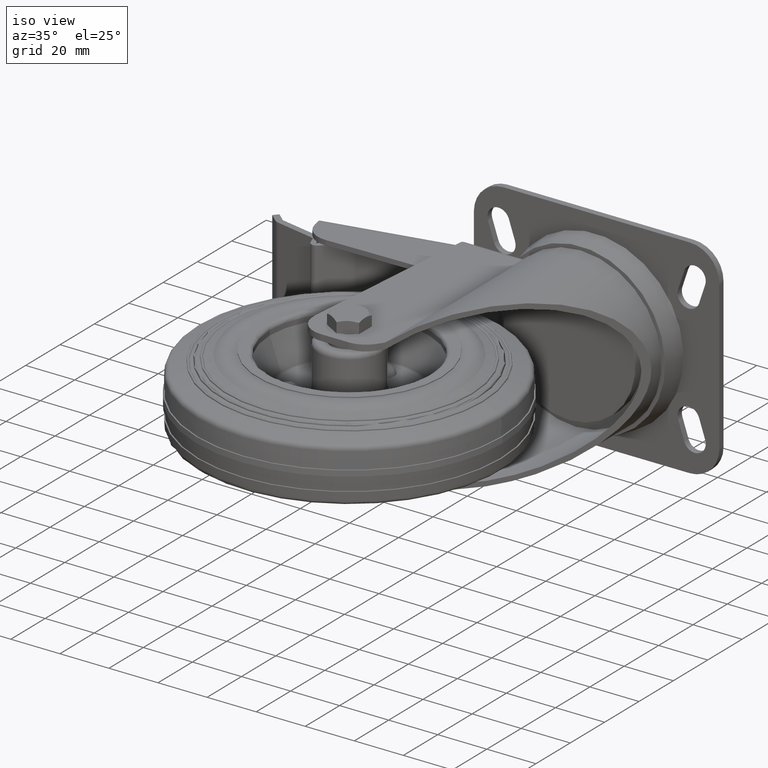
[diagram: clean part render]
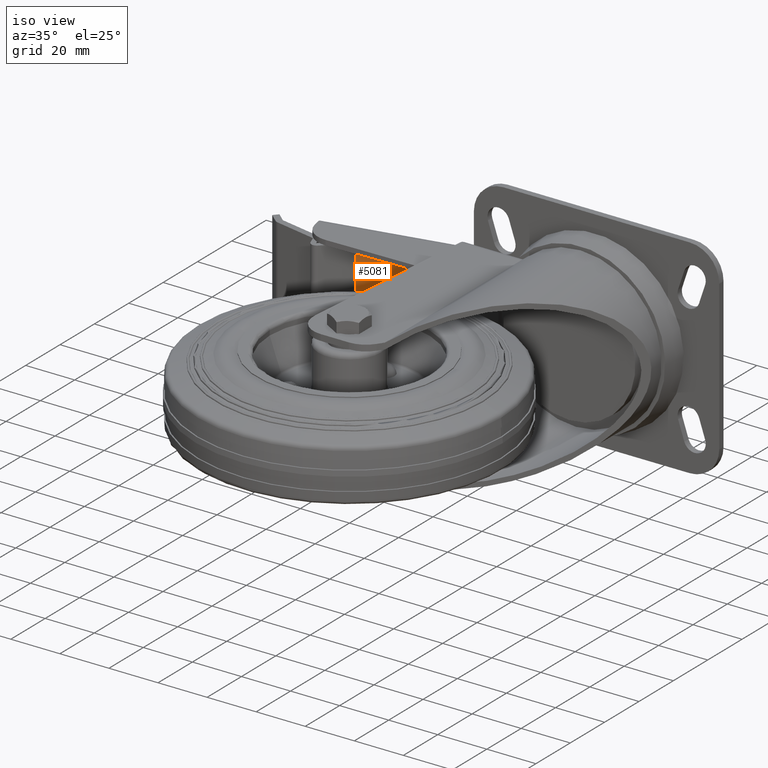
[diagram: same view with one face highlighted and labeled with its STEP entity id]
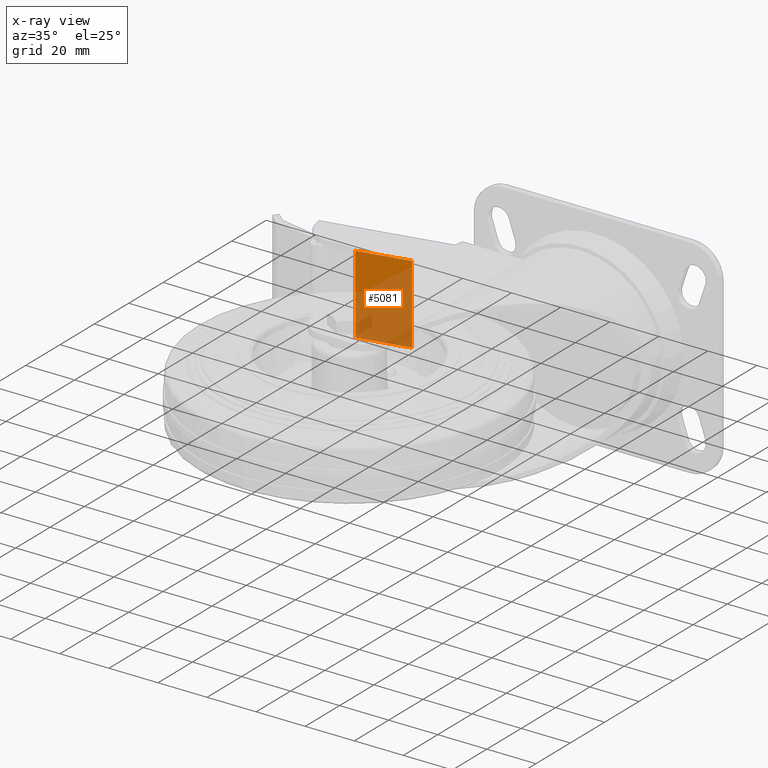
[diagram: x-ray of the same camera — body ghosted, the highlighted face saturated]
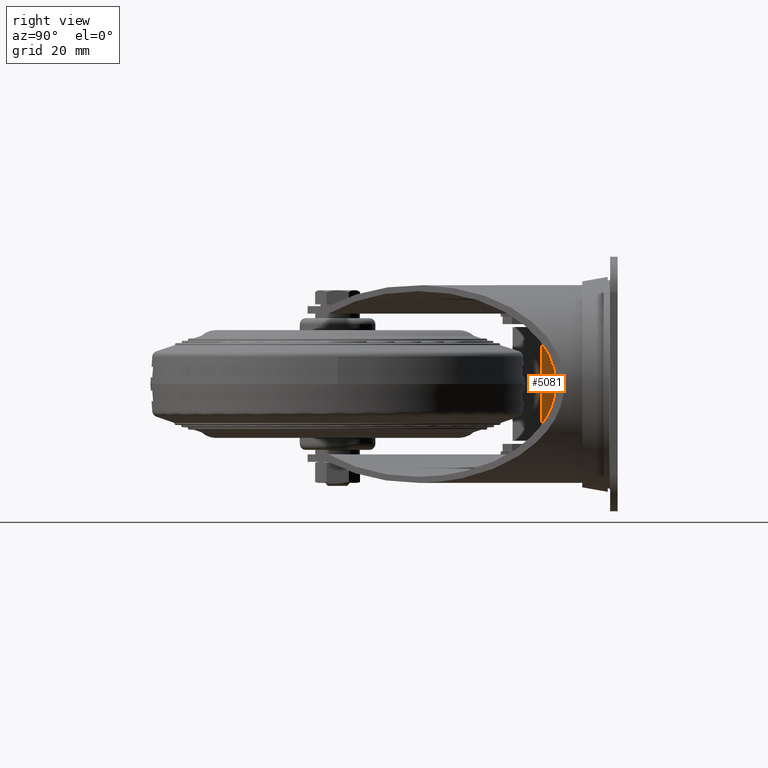
[diagram: same view with one face highlighted and labeled with its STEP entity id]
A machine part, iso view. The second image highlights one B-rep face of the part: STEP entity #5081.
The next image is the same camera in x-ray: the body ghosted, the highlighted face saturated — about 71% of this face is hidden behind the body in this view.
A second angle (right view) of the same face is appended — the face is thin or edge-on in the first view.
In plain terms, the highlighted planar face has unit normal (-0.2079, 0.9781, 0).
Its self-contained STEP definition (entity closure, byte-faithful):
#716=FACE_OUTER_BOUND('',#1052,.T.);
#1052=EDGE_LOOP('',(#4053,#4054,#4055,#4056));
#1349=LINE('',#8363,#1748);
#1350=LINE('',#8365,#1749);
#1351=LINE('',#8367,#1750);
#1352=LINE('',#8368,#1751);
#1748=VECTOR('',#6841,1000.);
#1749=VECTOR('',#6842,1000.);
#1750=VECTOR('',#6843,1000.);
#1751=VECTOR('',#6844,1000.);
#2240=VERTEX_POINT('',#8361);
#2241=VERTEX_POINT('',#8362);
#2242=VERTEX_POINT('',#8364);
#2243=VERTEX_POINT('',#8366);
#2865=EDGE_CURVE('',#2240,#2241,#1349,.T.);
#2866=EDGE_CURVE('',#2240,#2242,#1350,.T.);
#2867=EDGE_CURVE('',#2242,#2243,#1351,.T.);
#2868=EDGE_CURVE('',#2241,#2243,#1352,.T.);
#4053=ORIENTED_EDGE('',*,*,#2865,.F.);
#4054=ORIENTED_EDGE('',*,*,#2866,.T.);
#4055=ORIENTED_EDGE('',*,*,#2867,.T.);
#4056=ORIENTED_EDGE('',*,*,#2868,.F.);
#4559=PLANE('',#5625);
#5081=ADVANCED_FACE('',(#716),#4559,.F.);
#5625=AXIS2_PLACEMENT_3D('',#8360,#6839,#6840);
#6839=DIRECTION('center_axis',(-0.207911690817759,0.978147600733806,0.));
#6840=DIRECTION('ref_axis',(0.,0.,1.));
#6841=DIRECTION('',(0.978147600733806,0.207911690817759,0.));
#6842=DIRECTION('',(0.,0.,-1.));
#6843=DIRECTION('',(0.978147600733806,0.207911690817759,0.));
#6844=DIRECTION('',(0.,0.,-1.));
#8360=CARTESIAN_POINT('Origin',(-58.4283593449212,65.2983376850482,16.));
#8361=CARTESIAN_POINT('',(-45.2653778791871,68.0962157667309,16.));
#8362=CARTESIAN_POINT('',(-25.1713409199718,72.367335172852,16.));
#8363=CARTESIAN_POINT('',(-58.4283593449212,65.2983376850482,16.));
#8364=CARTESIAN_POINT('',(-45.2653778791871,68.0962157667309,-16.));
#8365=CARTESIAN_POINT('',(-45.2653778791871,68.0962157667309,19.));
#8366=CARTESIAN_POINT('',(-25.1713409199718,72.367335172852,-16.));
#8367=CARTESIAN_POINT('',(-58.4283593449212,65.2983376850482,-16.));
#8368=CARTESIAN_POINT('',(-25.1713409199718,72.367335172852,16.));